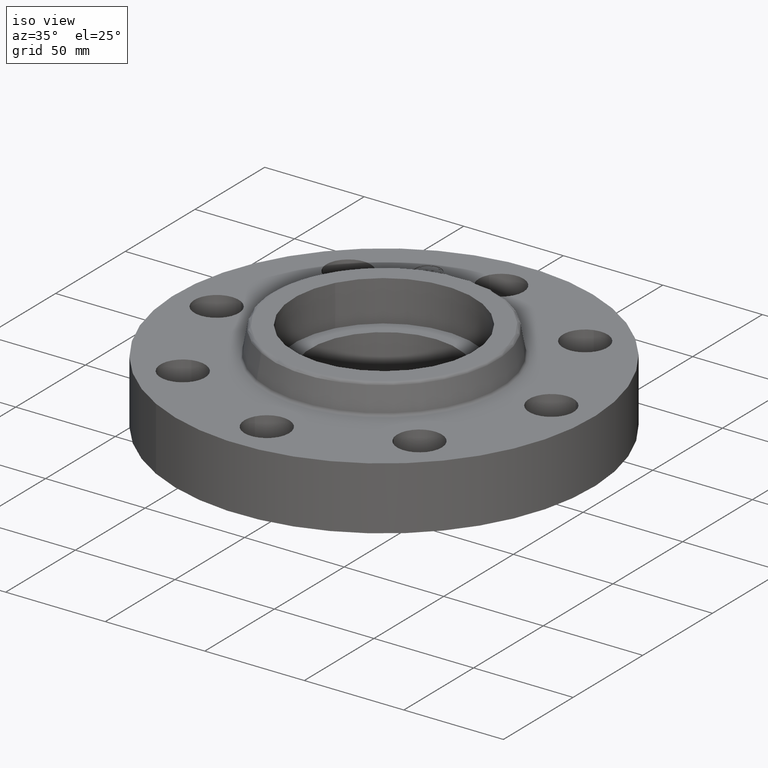
[diagram: clean part render]
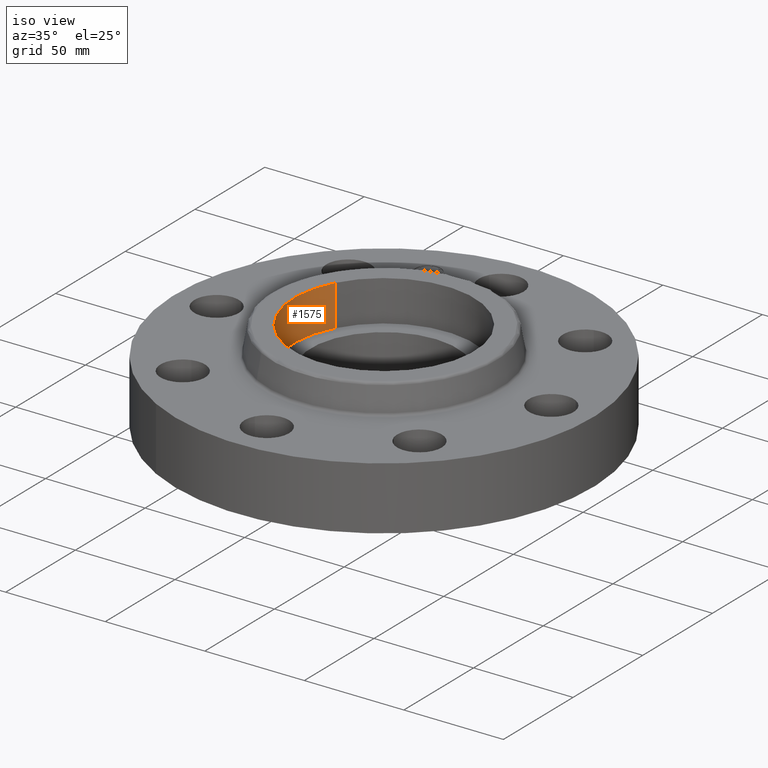
[diagram: same view with one face highlighted and labeled with its STEP entity id]
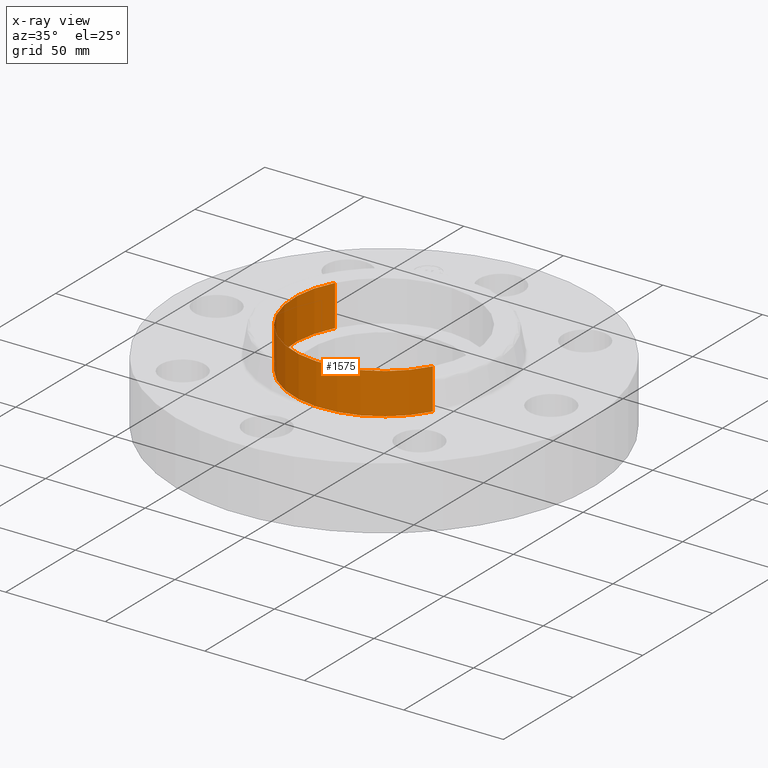
[diagram: x-ray of the same camera — body ghosted, the highlighted face saturated]
A machine part, iso view. The second image highlights one B-rep face of the part: STEP entity #1575.
The next image is the same camera in x-ray: the body ghosted, the highlighted face saturated — about 0% of this face is hidden behind the body in this view.
In plain terms, the highlighted cylindrical surface (partial cylindrical patch) has radius 45.339 mm, axis along (0, 0, -1).
Its self-contained STEP definition (entity closure, byte-faithful):
#51=AXIS2_PLACEMENT_3D('Circle Axis2P3D',#49,#50,$) ;
#1510=AXIS2_PLACEMENT_3D('Circle Axis2P3D',#1508,#1509,$) ;
#1550=AXIS2_PLACEMENT_3D('Cylinder Axis2P3D',#1547,#1548,#1549) ;
#44=CARTESIAN_POINT('Vertex',(-1.56648487298,0.855774586412,1.)) ;
#46=CARTESIAN_POINT('Vertex',(1.56648487298,-0.855774586412,1.)) ;
#49=CARTESIAN_POINT('Axis2P3D Location',(1.04902962957E-016,-6.99353086378E-017,1.)) ;
#1503=CARTESIAN_POINT('Vertex',(-1.56648487298,0.855774586412,1.81000000001)) ;
#1505=CARTESIAN_POINT('Vertex',(1.56648487298,-0.855774586412,1.81000000001)) ;
#1508=CARTESIAN_POINT('Axis2P3D Location',(0.,5.59482469102E-016,1.81000000001)) ;
#1547=CARTESIAN_POINT('Axis2P3D Location',(1.04902962957E-016,-6.99353086378E-017,1.80606299213)) ;
#1552=CARTESIAN_POINT('Line Origine',(-1.56648487298,0.855774586412,1.40500000001)) ;
#1557=CARTESIAN_POINT('Line Origine',(1.56648487298,-0.855774586412,1.40500000001)) ;
#50=DIRECTION('Axis2P3D Direction',(0.,0.,-0.0393700787402)) ;
#1509=DIRECTION('Axis2P3D Direction',(0.,0.,-0.0393700787402)) ;
#1548=DIRECTION('Axis2P3D Direction',(0.,0.,-0.0393700787402)) ;
#1549=DIRECTION('Axis2P3D XDirection',(0.0345504945626,-0.0188750212049,0.)) ;
#1553=DIRECTION('Vector Direction',(0.,0.,-0.0393700787402)) ;
#1558=DIRECTION('Vector Direction',(0.,0.,-0.0393700787402)) ;
#1554=VECTOR('Line Direction',#1553,0.0393700787402) ;
#1559=VECTOR('Line Direction',#1558,0.0393700787402) ;
#1570=ORIENTED_EDGE('',*,*,#1512,.F.) ;
#1571=ORIENTED_EDGE('',*,*,#1561,.F.) ;
#1572=ORIENTED_EDGE('',*,*,#53,.T.) ;
#1573=ORIENTED_EDGE('',*,*,#1556,.T.) ;
#1575=ADVANCED_FACE('PartBody',(#1574),#1551,.F.) ;
#52=CIRCLE('generated circle',#51,1.78500000001) ;
#1511=CIRCLE('generated circle',#1510,1.78500000001) ;
#1551=CYLINDRICAL_SURFACE('generated cylinder',#1550,1.78500000001) ;
#53=EDGE_CURVE('',#47,#45,#52,.T.) ;
#1512=EDGE_CURVE('',#1506,#1504,#1511,.T.) ;
#1556=EDGE_CURVE('',#45,#1504,#1555,.F.) ;
#1561=EDGE_CURVE('',#47,#1506,#1560,.F.) ;
#1569=EDGE_LOOP('',(#1570,#1571,#1572,#1573)) ;
#1574=FACE_OUTER_BOUND('',#1569,.T.) ;
#1555=LINE('Line',#1552,#1554) ;
#1560=LINE('Line',#1557,#1559) ;
#45=VERTEX_POINT('',#44) ;
#47=VERTEX_POINT('',#46) ;
#1504=VERTEX_POINT('',#1503) ;
#1506=VERTEX_POINT('',#1505) ;